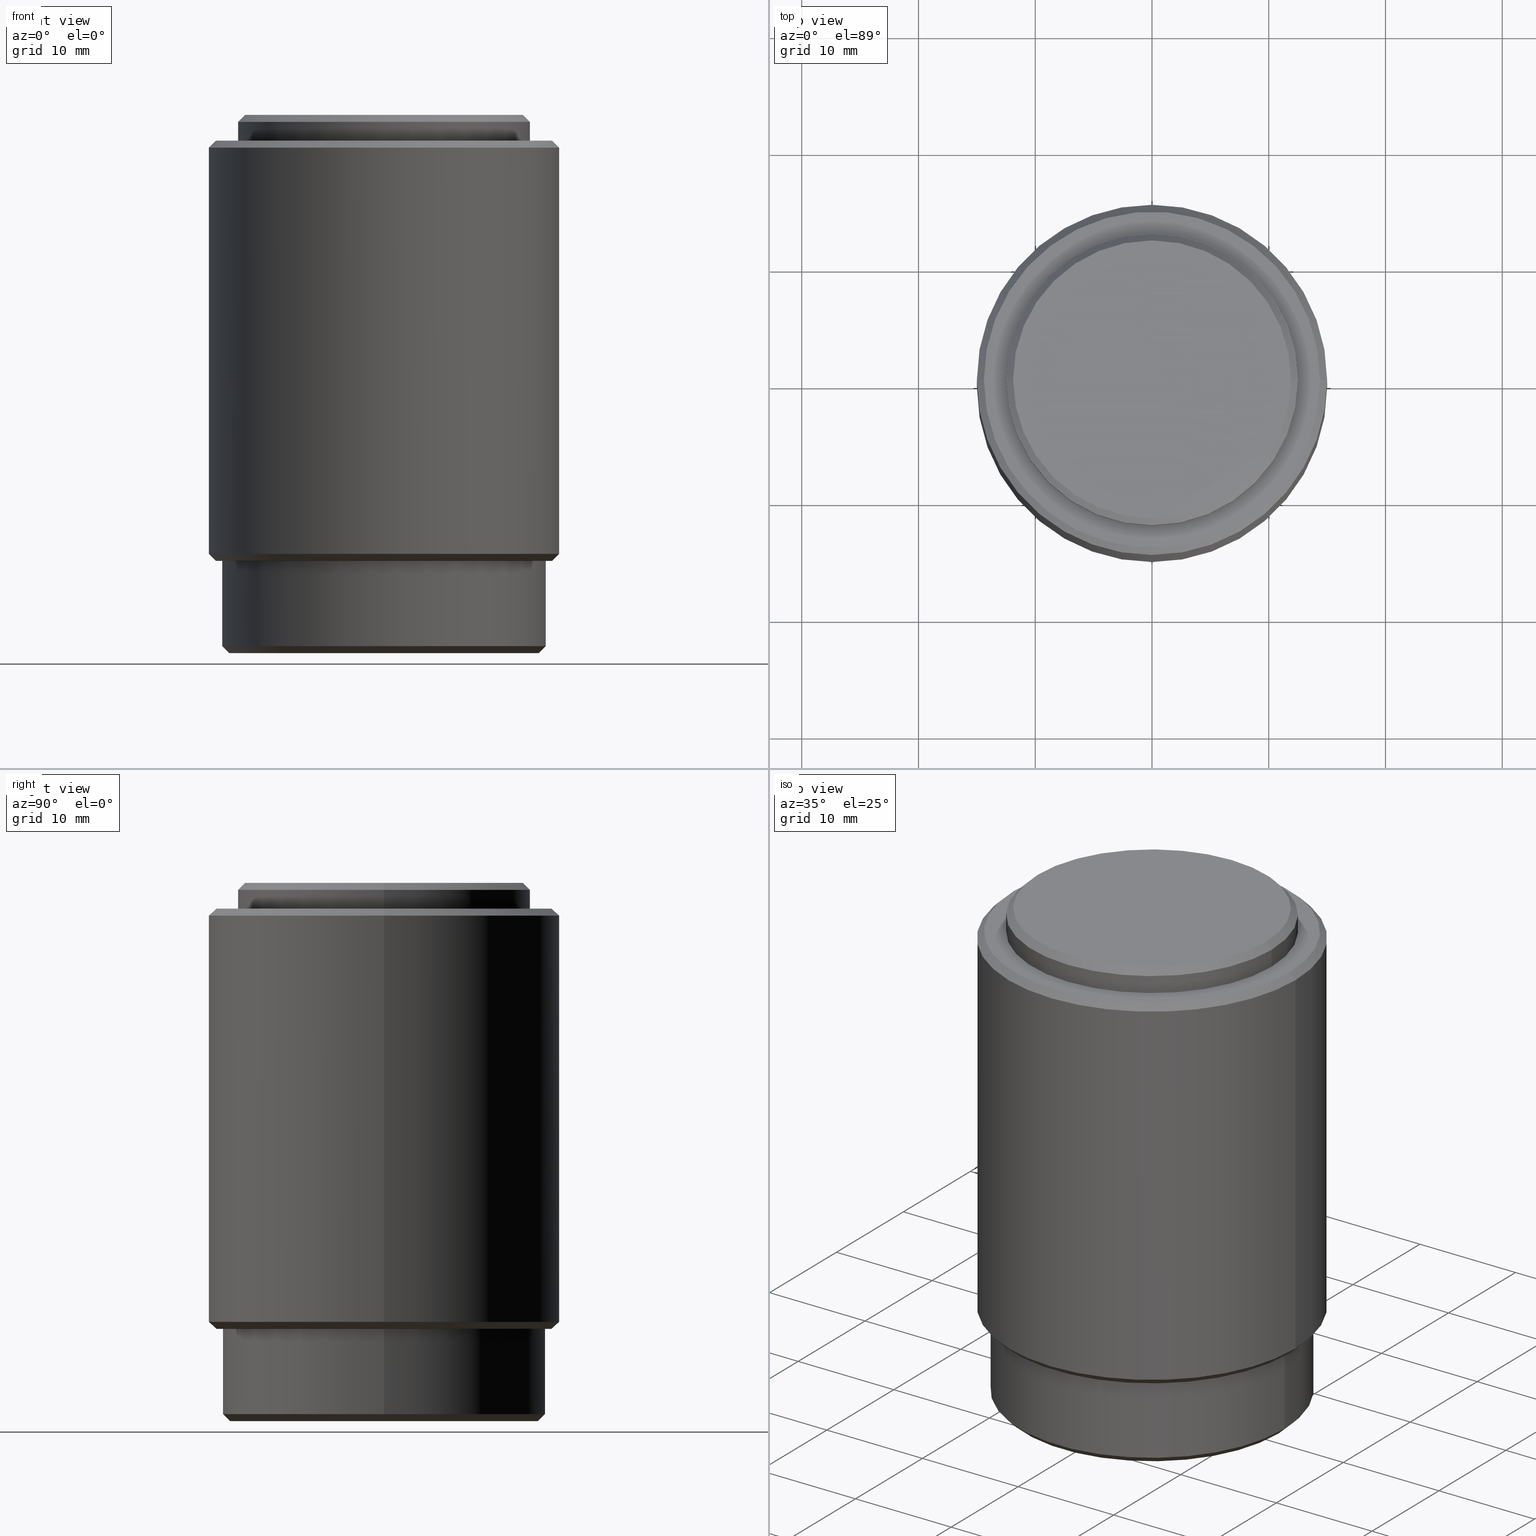
[diagram: canonical four-view strip — front | top / right | iso, engineering-drawing reading convention]
A machine part, canonical four-view strip (front | top / right | iso — engineering-drawing reading convention). The complete STEP part file that produces these views, byte-faithful:
ISO-10303-21;
HEADER;
FILE_DESCRIPTION (( 'STEP AP203' ),
    '1' );
FILE_NAME ('66130.STEP',
    '2019-03-04T07:16:58',
    ( 'User' ),
    ( 'china' ),
    'SwSTEP 2.0',
    'SolidWorks 2015',
    '' );
FILE_SCHEMA (( 'CONFIG_CONTROL_DESIGN' ));
ENDSEC;

DATA;
#1 = CC_DESIGN_DATE_AND_TIME_ASSIGNMENT ( #55, #217, ( #478 ) ) ;
#2 = VECTOR ( 'NONE', #477, 1000.000000000000000 ) ;
#3 = EDGE_CURVE ( 'NONE', #270, #249, #449, .T. ) ;
#4 = DIRECTION ( 'NONE',  ( -1.000000000000000000, 0.0000000000000000000, 0.0000000000000000000 ) ) ;
#5 = DIRECTION ( 'NONE',  ( 0.7071067811865495700, 0.0000000000000000000, 0.7071067811865454600 ) ) ;
#6 = APPROVAL_STATUS ( 'not_yet_approved' ) ;
#7 = APPROVAL_PERSON_ORGANIZATION ( #122, #228, #292 ) ;
#8 = CONICAL_SURFACE ( 'NONE', #385, 15.00000000000000000, 0.7853981633974511700 ) ;
#9 = VECTOR ( 'NONE', #491, 1000.000000000000000 ) ;
#10 = ADVANCED_FACE ( 'NONE', ( #173 ), #11, .T. ) ;
#11 = CYLINDRICAL_SURFACE ( 'NONE', #185, 12.50000000000000000 ) ;
#12 = ADVANCED_FACE ( 'NONE', ( #21 ), #322, .T. ) ;
#13 = EDGE_CURVE ( 'NONE', #110, #300, #229, .T. ) ;
#14 = AXIS2_PLACEMENT_3D ( 'NONE', #158, #402, #121 ) ;
#15 = CC_DESIGN_PERSON_AND_ORGANIZATION_ASSIGNMENT ( #223, #215, ( #251 ) ) ;
#16 = AXIS2_PLACEMENT_3D ( 'NONE', #81, #282, #36 ) ;
#17 = EDGE_CURVE ( 'NONE', #391, #103, #339, .T. ) ;
#18 = LINE ( 'NONE', #93, #224 ) ;
#19 = ORIENTED_EDGE ( 'NONE', *, *, #519, .T. ) ;
#20 = LINE ( 'NONE', #118, #446 ) ;
#21 = FACE_OUTER_BOUND ( 'NONE', #416, .T. ) ;
#22 = APPROVAL ( #505, 'δָ��' ) ;
#23 = ORIENTED_EDGE ( 'NONE', *, *, #88, .F. ) ;
#24 = DIRECTION ( 'NONE',  ( -1.000000000000000000, 0.0000000000000000000, 0.0000000000000000000 ) ) ;
#25 = EDGE_CURVE ( 'NONE', #463, #308, #434, .T. ) ;
#26 = ORIENTED_EDGE ( 'NONE', *, *, #503, .F. ) ;
#27 = ORIENTED_EDGE ( 'NONE', *, *, #354, .T. ) ;
#28 = CARTESIAN_POINT ( 'NONE',  ( -15.00000000000000000, 0.0000000000000000000, 43.89999999999999100 ) ) ;
#29 = CYLINDRICAL_SURFACE ( 'NONE', #301, 13.85000000000000000 ) ;
#30 = CARTESIAN_POINT ( 'NONE',  ( 0.0000000000000000000, 0.0000000000000000000, 8.500000000000007100 ) ) ;
#31 = CARTESIAN_POINT ( 'NONE',  ( -13.85000000000000000, 0.0000000000000000000, 0.6000000000000015300 ) ) ;
#32 = LINE ( 'NONE', #399, #462 ) ;
#33 = CARTESIAN_POINT ( 'NONE',  ( -13.85000000000000000, 0.0000000000000000000, 7.900000000000000400 ) ) ;
#34 = CARTESIAN_POINT ( 'NONE',  ( 0.0000000000000000000, 0.0000000000000000000, 45.49999999999997900 ) ) ;
#35 = ORIENTED_EDGE ( 'NONE', *, *, #418, .T. ) ;
#36 = DIRECTION ( 'NONE',  ( 1.000000000000000000, 0.0000000000000000000, 0.0000000000000000000 ) ) ;
#37 = DIRECTION ( 'NONE',  ( 1.000000000000000000, 0.0000000000000000000, 0.0000000000000000000 ) ) ;
#38 = CALENDAR_DATE ( 2019, 4, 3 ) ;
#39 = DIRECTION ( 'NONE',  ( 1.000000000000000000, 0.0000000000000000000, -0.0000000000000000000 ) ) ;
#40 = CARTESIAN_POINT ( 'NONE',  ( -14.39999999999999000, 1.800230794746608700E-015, 7.900000000000000400 ) ) ;
#41 = EDGE_CURVE ( 'NONE', #532, #300, #115, .T. ) ;
#42 = ORIENTED_EDGE ( 'NONE', *, *, #144, .T. ) ;
#43 = PLANE ( 'NONE',  #242 ) ;
#44 = AXIS2_PLACEMENT_3D ( 'NONE', #30, #357, #119 ) ;
#45 = DIRECTION ( 'NONE',  ( 0.0000000000000000000, 0.0000000000000000000, -1.000000000000000000 ) ) ;
#46 = CARTESIAN_POINT ( 'NONE',  ( -12.50000000000000000, 0.0000000000000000000, 43.89999999999999100 ) ) ;
#47 = PRODUCT_DEFINITION ( 'δ֪', '', #337, #355 ) ;
#48 =( NAMED_UNIT ( * ) SI_UNIT ( $, .STERADIAN. ) SOLID_ANGLE_UNIT ( ) );
#49 = CIRCLE ( 'NONE', #247, 15.00000000000000000 ) ;
#50 = AXIS2_PLACEMENT_3D ( 'NONE', #234, #483, #313 ) ;
#51 = EDGE_CURVE ( 'NONE', #295, #237, #427, .T. ) ;
#52 = PERSON_AND_ORGANIZATION_ROLE ( 'creator' ) ;
#53 = ORIENTED_EDGE ( 'NONE', *, *, #466, .F. ) ;
#54 = ADVANCED_FACE ( 'NONE', ( #310 ), #414, .T. ) ;
#55 = DATE_AND_TIME ( #164, #264 ) ;
#56 = ORIENTED_EDGE ( 'NONE', *, *, #494, .T. ) ;
#57 = CC_DESIGN_APPROVAL ( #22, ( #478 ) ) ;
#58 = ADVANCED_FACE ( 'NONE', ( #221 ), #196, .T. ) ;
#59 = EDGE_LOOP ( 'NONE', ( #235, #56, #367, #373 ) ) ;
#60 = VECTOR ( 'NONE', #529, 1000.000000000000000 ) ;
#61 = EDGE_CURVE ( 'NONE', #532, #249, #209, .T. ) ;
#62 = VERTEX_POINT ( 'NONE', #472 ) ;
#63 = VECTOR ( 'NONE', #163, 1000.000000000000000 ) ;
#64 = ORIENTED_EDGE ( 'NONE', *, *, #69, .F. ) ;
#65 = PERSON_AND_ORGANIZATION ( #371, #331 ) ;
#66 = ORIENTED_EDGE ( 'NONE', *, *, #77, .T. ) ;
#67 = EDGE_LOOP ( 'NONE', ( #394, #145 ) ) ;
#68 = FACE_OUTER_BOUND ( 'NONE', #186, .T. ) ;
#69 = EDGE_CURVE ( 'NONE', #80, #532, #32, .T. ) ;
#70 = DIRECTION ( 'NONE',  ( -0.0000000000000000000, -0.0000000000000000000, -1.000000000000000000 ) ) ;
#71 = AXIS2_PLACEMENT_3D ( 'NONE', #314, #535, #283 ) ;
#72 = DIRECTION ( 'NONE',  ( -0.7071067811865465700, 0.0000000000000000000, -0.7071067811865485700 ) ) ;
#73 = EDGE_LOOP ( 'NONE', ( #178, #193, #27, #255 ) ) ;
#74 = CIRCLE ( 'NONE', #44, 15.00000000000000000 ) ;
#75 = DIRECTION ( 'NONE',  ( 1.000000000000000000, 0.0000000000000000000, 0.0000000000000000000 ) ) ;
#76 = AXIS2_PLACEMENT_3D ( 'NONE', #324, #489, #89 ) ;
#77 = EDGE_CURVE ( 'NONE', #237, #295, #238, .T. ) ;
#78 = CARTESIAN_POINT ( 'NONE',  ( 13.24999999999999600, 0.0000000000000000000, 0.0000000000000000000 ) ) ;
#79 = LOCAL_TIME ( 15, 16, 58.00000000000000000, #190 ) ;
#80 = VERTEX_POINT ( 'NONE', #351 ) ;
#81 = CARTESIAN_POINT ( 'NONE',  ( 0.0000000000000000000, 0.0000000000000000000, 0.6000000000000015300 ) ) ;
#82 = ORIENTED_EDGE ( 'NONE', *, *, #25, .T. ) ;
#83 = CIRCLE ( 'NONE', #437, 14.39999999999999000 ) ;
#84 = DIRECTION ( 'NONE',  ( 1.000000000000000000, 0.0000000000000000000, 0.0000000000000000000 ) ) ;
#85 = CC_DESIGN_SECURITY_CLASSIFICATION ( #478, ( #337 ) ) ;
#86 = PLANE ( 'NONE',  #525 ) ;
#87 = CARTESIAN_POINT ( 'NONE',  ( 0.0000000000000000000, 0.0000000000000000000, 46.09999999999999400 ) ) ;
#88 = EDGE_CURVE ( 'NONE', #168, #103, #20, .T. ) ;
#89 = DIRECTION ( 'NONE',  ( 1.000000000000000000, 0.0000000000000000000, 0.0000000000000000000 ) ) ;
#90 = CARTESIAN_POINT ( 'NONE',  ( 14.40000000000000400, 1.763491390772189200E-015, 43.89999999999999100 ) ) ;
#91 = ORIENTED_EDGE ( 'NONE', *, *, #136, .F. ) ;
#92 = CARTESIAN_POINT ( 'NONE',  ( 0.0000000000000000000, 0.0000000000000000000, 43.89999999999999100 ) ) ;
#93 = CARTESIAN_POINT ( 'NONE',  ( 12.50000000000000000, 1.530808498934191500E-015, 46.09999999999999400 ) ) ;
#94 = APPLICATION_PROTOCOL_DEFINITION ( 'international standard', 'config_control_design', 1994, #133 ) ;
#95 = APPROVAL_STATUS ( 'not_yet_approved' ) ;
#96 = CALENDAR_DATE ( 2019, 4, 3 ) ;
#97 = EDGE_LOOP ( 'NONE', ( #398, #35, #406, #423 ) ) ;
#98 = VERTEX_POINT ( 'NONE', #412 ) ;
#99 = FACE_BOUND ( 'NONE', #259, .T. ) ;
#100 = ADVANCED_FACE ( 'NONE', ( #336 ), #86, .F. ) ;
#101 = VECTOR ( 'NONE', #430, 1000.000000000000000 ) ;
#102 = AXIS2_PLACEMENT_3D ( 'NONE', #522, #349, #195 ) ;
#103 = VERTEX_POINT ( 'NONE', #401 ) ;
#104 = AXIS2_PLACEMENT_3D ( 'NONE', #485, #240, #37 ) ;
#105 = AXIS2_PLACEMENT_3D ( 'NONE', #534, #358, #123 ) ;
#106 = EDGE_CURVE ( 'NONE', #463, #161, #140, .T. ) ;
#107 = DATE_AND_TIME ( #216, #315 ) ;
#108 = EDGE_LOOP ( 'NONE', ( #260, #141 ) ) ;
#109 = CARTESIAN_POINT ( 'NONE',  ( 0.0000000000000000000, 0.0000000000000000000, 7.900000000000000400 ) ) ;
#110 = VERTEX_POINT ( 'NONE', #241 ) ;
#111 = CYLINDRICAL_SURFACE ( 'NONE', #134, 15.00000000000000000 ) ;
#112 = DIRECTION ( 'NONE',  ( -1.000000000000000000, 0.0000000000000000000, 0.0000000000000000000 ) ) ;
#113 = CARTESIAN_POINT ( 'NONE',  ( 0.0000000000000000000, 0.0000000000000000000, 43.89999999999999100 ) ) ;
#114 = PRODUCT_RELATED_PRODUCT_CATEGORY ( 'detail', '', ( #251 ) ) ;
#115 = CIRCLE ( 'NONE', #154, 12.50000000000000000 ) ;
#116 = CARTESIAN_POINT ( 'NONE',  ( 0.0000000000000000000, 0.0000000000000000000, 46.09999999999999400 ) ) ;
#117 = EDGE_CURVE ( 'NONE', #62, #308, #226, .T. ) ;
#118 = CARTESIAN_POINT ( 'NONE',  ( 15.00000000000000000, 1.836970198721029600E-015, 43.89999999999999100 ) ) ;
#119 = DIRECTION ( 'NONE',  ( 1.000000000000000000, 0.0000000000000000000, 0.0000000000000000000 ) ) ;
#120 = DIRECTION ( 'NONE',  ( 0.0000000000000000000, 0.0000000000000000000, 1.000000000000000000 ) ) ;
#121 = DIRECTION ( 'NONE',  ( 1.000000000000000000, 0.0000000000000000000, 0.0000000000000000000 ) ) ;
#122 = PERSON_AND_ORGANIZATION ( #371, #331 ) ;
#123 = DIRECTION ( 'NONE',  ( 1.000000000000000000, 0.0000000000000000000, 0.0000000000000000000 ) ) ;
#124 = FACE_OUTER_BOUND ( 'NONE', #311, .T. ) ;
#125 = DIRECTION ( 'NONE',  ( 0.0000000000000000000, 0.0000000000000000000, -1.000000000000000000 ) ) ;
#126 = VECTOR ( 'NONE', #518, 1000.000000000000000 ) ;
#127 = DIRECTION ( 'NONE',  ( 1.000000000000000000, 0.0000000000000000000, 0.0000000000000000000 ) ) ;
#128 = AXIS2_PLACEMENT_3D ( 'NONE', #433, #149, #392 ) ;
#129 = CARTESIAN_POINT ( 'NONE',  ( 12.50000000000000000, 1.530808498934191500E-015, 43.89999999999999100 ) ) ;
#130 = DIRECTION ( 'NONE',  ( -0.0000000000000000000, -0.0000000000000000000, 1.000000000000000000 ) ) ;
#131 = DIRECTION ( 'NONE',  ( -0.0000000000000000000, -0.0000000000000000000, -1.000000000000000000 ) ) ;
#132 = CARTESIAN_POINT ( 'NONE',  ( 0.0000000000000000000, 0.0000000000000000000, 0.0000000000000000000 ) ) ;
#133 = APPLICATION_CONTEXT ( 'configuration controlled 3d designs of mechanical parts and assemblies' ) ;
#134 = AXIS2_PLACEMENT_3D ( 'NONE', #199, #363, #441 ) ;
#135 = ORIENTED_EDGE ( 'NONE', *, *, #302, .F. ) ;
#136 = EDGE_CURVE ( 'NONE', #249, #270, #344, .T. ) ;
#137 = VECTOR ( 'NONE', #5, 1000.000000000000000 ) ;
#138 = ORIENTED_EDGE ( 'NONE', *, *, #503, .T. ) ;
#139 = PERSON_AND_ORGANIZATION_ROLE ( 'creator' ) ;
#140 = CIRCLE ( 'NONE', #502, 13.24999999999999600 ) ;
#141 = ORIENTED_EDGE ( 'NONE', *, *, #435, .T. ) ;
#142 = ADVANCED_FACE ( 'NONE', ( #124 ), #111, .T. ) ;
#143 = ORIENTED_EDGE ( 'NONE', *, *, #106, .T. ) ;
#144 = EDGE_CURVE ( 'NONE', #335, #391, #219, .T. ) ;
#145 = ORIENTED_EDGE ( 'NONE', *, *, #157, .T. ) ;
#146 = CIRCLE ( 'NONE', #269, 11.89999999999998400 ) ;
#147 = DIRECTION ( 'NONE',  ( 0.0000000000000000000, 0.0000000000000000000, 1.000000000000000000 ) ) ;
#148 = ORIENTED_EDGE ( 'NONE', *, *, #3, .T. ) ;
#149 = DIRECTION ( 'NONE',  ( -0.0000000000000000000, -0.0000000000000000000, 1.000000000000000000 ) ) ;
#150 = LOCAL_TIME ( 15, 16, 58.00000000000000000, #256 ) ;
#151 = ORIENTED_EDGE ( 'NONE', *, *, #411, .T. ) ;
#152 = DIRECTION ( 'NONE',  ( -0.0000000000000000000, -0.0000000000000000000, -1.000000000000000000 ) ) ;
#153 = ORIENTED_EDGE ( 'NONE', *, *, #144, .F. ) ;
#154 = AXIS2_PLACEMENT_3D ( 'NONE', #263, #515, #227 ) ;
#155 = DIRECTION ( 'NONE',  ( -0.0000000000000000000, -0.0000000000000000000, -1.000000000000000000 ) ) ;
#156 = FACE_OUTER_BOUND ( 'NONE', #364, .T. ) ;
#157 = EDGE_CURVE ( 'NONE', #481, #165, #318, .T. ) ;
#158 = CARTESIAN_POINT ( 'NONE',  ( 0.0000000000000000000, 0.0000000000000000000, 7.900000000000000400 ) ) ;
#159 = MANIFOLD_SOLID_BREP ( '����1', #499 ) ;
#160 = DIRECTION ( 'NONE',  ( 0.0000000000000000000, 0.0000000000000000000, -1.000000000000000000 ) ) ;
#161 = VERTEX_POINT ( 'NONE', #78 ) ;
#162 = DIRECTION ( 'NONE',  ( 1.000000000000000000, 0.0000000000000000000, -0.0000000000000000000 ) ) ;
#163 = DIRECTION ( 'NONE',  ( -0.7071067811865495700, 8.659560562354957500E-017, 0.7071067811865454600 ) ) ;
#164 = CALENDAR_DATE ( 2019, 4, 3 ) ;
#165 = VERTEX_POINT ( 'NONE', #273 ) ;
#166 = DIRECTION ( 'NONE',  ( -0.0000000000000000000, -0.0000000000000000000, -1.000000000000000000 ) ) ;
#167 = DIRECTION ( 'NONE',  ( -0.0000000000000000000, -0.0000000000000000000, 1.000000000000000000 ) ) ;
#168 = VERTEX_POINT ( 'NONE', #286 ) ;
#169 = LINE ( 'NONE', #359, #268 ) ;
#170 = DIRECTION ( 'NONE',  ( 0.0000000000000000000, 0.0000000000000000000, 1.000000000000000000 ) ) ;
#171 = DIRECTION ( 'NONE',  ( 1.000000000000000000, 0.0000000000000000000, -0.0000000000000000000 ) ) ;
#172 = CARTESIAN_POINT ( 'NONE',  ( 0.0000000000000000000, 0.0000000000000000000, 7.900000000000000400 ) ) ;
#173 = FACE_OUTER_BOUND ( 'NONE', #262, .T. ) ;
#174 = DIRECTION ( 'NONE',  ( 0.7071067811865486800, 0.0000000000000000000, 0.7071067811865464600 ) ) ;
#175 = CONICAL_SURFACE ( 'NONE', #521, 14.40000000000000400, 0.7853981633974482800 ) ;
#176 = DIRECTION ( 'NONE',  ( 1.000000000000000000, 0.0000000000000000000, 0.0000000000000000000 ) ) ;
#177 = SECURITY_CLASSIFICATION_LEVEL ( 'unclassified' ) ;
#178 = ORIENTED_EDGE ( 'NONE', *, *, #330, .F. ) ;
#179 = PERSON_AND_ORGANIZATION ( #371, #331 ) ;
#180 = ORIENTED_EDGE ( 'NONE', *, *, #330, .T. ) ;
#181 = ADVANCED_FACE ( 'NONE', ( #309 ), #409, .T. ) ;
#182 = ORIENTED_EDGE ( 'NONE', *, *, #61, .T. ) ;
#183 = CIRCLE ( 'NONE', #496, 12.50000000000000000 ) ;
#184 = ADVANCED_FACE ( 'NONE', ( #432, #99 ), #43, .F. ) ;
#185 = AXIS2_PLACEMENT_3D ( 'NONE', #116, #70, #230 ) ;
#186 = EDGE_LOOP ( 'NONE', ( #191, #380, #289, #64 ) ) ;
#187 = CIRCLE ( 'NONE', #222, 13.85000000000000000 ) ;
#188 = AXIS2_PLACEMENT_3D ( 'NONE', #246, #212, #4 ) ;
#189 = CARTESIAN_POINT ( 'NONE',  ( -12.50000000000000000, 0.0000000000000000000, 46.09999999999999400 ) ) ;
#190 = COORDINATED_UNIVERSAL_TIME_OFFSET ( 8, 0, .AHEAD. ) ;
#191 = ORIENTED_EDGE ( 'NONE', *, *, #435, .F. ) ;
#192 = DIRECTION ( 'NONE',  ( -1.000000000000000000, 0.0000000000000000000, 0.0000000000000000000 ) ) ;
#193 = ORIENTED_EDGE ( 'NONE', *, *, #388, .F. ) ;
#194 = FACE_OUTER_BOUND ( 'NONE', #205, .T. ) ;
#195 = DIRECTION ( 'NONE',  ( 1.000000000000000000, 0.0000000000000000000, 0.0000000000000000000 ) ) ;
#196 = CYLINDRICAL_SURFACE ( 'NONE', #468, 13.85000000000000000 ) ;
#197 = ORIENTED_EDGE ( 'NONE', *, *, #106, .F. ) ;
#198 = AXIS2_PLACEMENT_3D ( 'NONE', #400, #320, #84 ) ;
#199 = CARTESIAN_POINT ( 'NONE',  ( 0.0000000000000000000, 0.0000000000000000000, 43.89999999999999100 ) ) ;
#200 = CARTESIAN_POINT ( 'NONE',  ( -13.24999999999999600, 1.659396412844663200E-015, 0.0000000000000000000 ) ) ;
#201 = CARTESIAN_POINT ( 'NONE',  ( -15.00000000000000000, 0.0000000000000000000, 43.29999999999999700 ) ) ;
#202 = LOCAL_TIME ( 15, 16, 58.00000000000000000, #303 ) ;
#203 = DIRECTION ( 'NONE',  ( -0.0000000000000000000, -0.0000000000000000000, -1.000000000000000000 ) ) ;
#204 = ORIENTED_EDGE ( 'NONE', *, *, #69, .T. ) ;
#205 = EDGE_LOOP ( 'NONE', ( #66, #492 ) ) ;
#206 = FACE_OUTER_BOUND ( 'NONE', #108, .T. ) ;
#207 = CARTESIAN_POINT ( 'NONE',  ( 0.0000000000000000000, 0.0000000000000000000, 0.0000000000000000000 ) ) ;
#208 = DIRECTION ( 'NONE',  ( -0.0000000000000000000, -0.0000000000000000000, -1.000000000000000000 ) ) ;
#209 = LINE ( 'NONE', #189, #101 ) ;
#210 = CARTESIAN_POINT ( 'NONE',  ( 0.0000000000000000000, 0.0000000000000000000, 46.09999999999999400 ) ) ;
#211 = DIRECTION ( 'NONE',  ( 0.0000000000000000000, 0.0000000000000000000, -1.000000000000000000 ) ) ;
#212 = DIRECTION ( 'NONE',  ( 0.0000000000000000000, 0.0000000000000000000, -1.000000000000000000 ) ) ;
#213 = CARTESIAN_POINT ( 'NONE',  ( 0.0000000000000000000, 0.0000000000000000000, 0.0000000000000000000 ) ) ;
#214 = CARTESIAN_POINT ( 'NONE',  ( -12.50000000000000000, 0.0000000000000000000, 45.49999999999997900 ) ) ;
#215 = PERSON_AND_ORGANIZATION_ROLE ( 'design_owner' ) ;
#216 = CALENDAR_DATE ( 2019, 4, 3 ) ;
#217 = DATE_TIME_ROLE ( 'classification_date' ) ;
#218 = ORIENTED_EDGE ( 'NONE', *, *, #61, .F. ) ;
#219 = LINE ( 'NONE', #28, #9 ) ;
#220 = ADVANCED_FACE ( 'NONE', ( #533 ), #511, .T. ) ;
#221 = FACE_OUTER_BOUND ( 'NONE', #73, .T. ) ;
#222 = AXIS2_PLACEMENT_3D ( 'NONE', #410, #167, #451 ) ;
#223 = PERSON_AND_ORGANIZATION ( #371, #331 ) ;
#224 = VECTOR ( 'NONE', #372, 1000.000000000000000 ) ;
#225 = ORIENTED_EDGE ( 'NONE', *, *, #347, .T. ) ;
#226 = CIRCLE ( 'NONE', #16, 13.85000000000000000 ) ;
#227 = DIRECTION ( 'NONE',  ( 1.000000000000000000, 0.0000000000000000000, 0.0000000000000000000 ) ) ;
#228 = APPROVAL ( #6, 'δָ��' ) ;
#229 = LINE ( 'NONE', #266, #126 ) ;
#230 = DIRECTION ( 'NONE',  ( -1.000000000000000000, 0.0000000000000000000, 0.0000000000000000000 ) ) ;
#231 = ORIENTED_EDGE ( 'NONE', *, *, #418, .F. ) ;
#232 = ORIENTED_EDGE ( 'NONE', *, *, #480, .T. ) ;
#233 = DIRECTION ( 'NONE',  ( 1.000000000000000000, 0.0000000000000000000, 0.0000000000000000000 ) ) ;
#234 = CARTESIAN_POINT ( 'NONE',  ( 0.0000000000000000000, 0.0000000000000000000, 43.89999999999999100 ) ) ;
#235 = ORIENTED_EDGE ( 'NONE', *, *, #51, .F. ) ;
#236 = VECTOR ( 'NONE', #245, 1000.000000000000100 ) ;
#237 = VERTEX_POINT ( 'NONE', #455 ) ;
#238 = CIRCLE ( 'NONE', #387, 14.40000000000000400 ) ;
#239 = EDGE_LOOP ( 'NONE', ( #138, #143 ) ) ;
#240 = DIRECTION ( 'NONE',  ( -0.0000000000000000000, -0.0000000000000000000, 1.000000000000000000 ) ) ;
#241 = CARTESIAN_POINT ( 'NONE',  ( 11.89999999999998400, 1.494069094959770100E-015, 46.09999999999999400 ) ) ;
#242 = AXIS2_PLACEMENT_3D ( 'NONE', #326, #120, #171 ) ;
#243 = DIRECTION ( 'NONE',  ( -1.000000000000000000, 0.0000000000000000000, 0.0000000000000000000 ) ) ;
#244 = EDGE_LOOP ( 'NONE', ( #384, #53, #204, #378 ) ) ;
#245 = DIRECTION ( 'NONE',  ( 0.7071067811865474600, 8.659560562354932900E-017, -0.7071067811865474600 ) ) ;
#246 = CARTESIAN_POINT ( 'NONE',  ( 0.0000000000000000000, 0.0000000000000000000, 43.89999999999999100 ) ) ;
#247 = AXIS2_PLACEMENT_3D ( 'NONE', #453, #211, #497 ) ;
#248 = DIRECTION ( 'NONE',  ( 1.000000000000000000, 0.0000000000000000000, 0.0000000000000000000 ) ) ;
#249 = VERTEX_POINT ( 'NONE', #46 ) ;
#250 = CONICAL_SURFACE ( 'NONE', #104, 13.85000000000000000, 0.7853981633974498300 ) ;
#251 = PRODUCT ( '66130', '66130', '', ( #459 ) ) ;
#252 = APPLICATION_PROTOCOL_DEFINITION ( 'international standard', 'config_control_design', 1994, #504 ) ;
#253 = APPROVAL_ROLE ( '' ) ;
#254 = CC_DESIGN_APPROVAL ( #228, ( #47 ) ) ;
#255 = ORIENTED_EDGE ( 'NONE', *, *, #440, .T. ) ;
#256 = COORDINATED_UNIVERSAL_TIME_OFFSET ( 8, 0, .AHEAD. ) ;
#257 = ORIENTED_EDGE ( 'NONE', *, *, #25, .F. ) ;
#258 = ADVANCED_FACE ( 'NONE', ( #194, #296 ), #369, .T. ) ;
#259 = EDGE_LOOP ( 'NONE', ( #360, #304 ) ) ;
#260 = ORIENTED_EDGE ( 'NONE', *, *, #466, .T. ) ;
#261 = FACE_OUTER_BOUND ( 'NONE', #284, .T. ) ;
#262 = EDGE_LOOP ( 'NONE', ( #479, #513, #182, #429 ) ) ;
#263 = CARTESIAN_POINT ( 'NONE',  ( 0.0000000000000000000, 0.0000000000000000000, 45.49999999999997900 ) ) ;
#264 = LOCAL_TIME ( 15, 16, 58.00000000000000000, #377 ) ;
#265 = ORIENTED_EDGE ( 'NONE', *, *, #470, .T. ) ;
#266 = CARTESIAN_POINT ( 'NONE',  ( 11.89999999999998400, 1.457329690985348400E-015, 46.09999999999999400 ) ) ;
#267 = ORIENTED_EDGE ( 'NONE', *, *, #117, .T. ) ;
#268 = VECTOR ( 'NONE', #276, 1000.000000000000100 ) ;
#269 = AXIS2_PLACEMENT_3D ( 'NONE', #87, #368, #127 ) ;
#270 = VERTEX_POINT ( 'NONE', #129 ) ;
#271 = CARTESIAN_POINT ( 'NONE',  ( 0.0000000000000000000, 0.0000000000000000000, 43.89999999999999100 ) ) ;
#272 = CIRCLE ( 'NONE', #14, 13.85000000000000000 ) ;
#273 = CARTESIAN_POINT ( 'NONE',  ( 14.39999999999999000, 0.0000000000000000000, 7.900000000000000400 ) ) ;
#274 = CARTESIAN_POINT ( 'NONE',  ( -15.00000000000000000, 0.0000000000000000000, 8.500000000000007100 ) ) ;
#275 = CARTESIAN_POINT ( 'NONE',  ( 0.0000000000000000000, 0.0000000000000000000, 46.09999999999999400 ) ) ;
#276 = DIRECTION ( 'NONE',  ( -0.7071067811865474600, 0.0000000000000000000, -0.7071067811865474600 ) ) ;
#277 = ORIENTED_EDGE ( 'NONE', *, *, #3, .F. ) ;
#278 = DIRECTION ( 'NONE',  ( 0.0000000000000000000, 0.0000000000000000000, -1.000000000000000000 ) ) ;
#279 = APPROVAL_DATE_TIME ( #390, #361 ) ;
#280 = EDGE_LOOP ( 'NONE', ( #257, #26, #376, #507 ) ) ;
#281 = CC_DESIGN_PERSON_AND_ORGANIZATION_ASSIGNMENT ( #421, #52, ( #47 ) ) ;
#282 = DIRECTION ( 'NONE',  ( -0.0000000000000000000, -0.0000000000000000000, 1.000000000000000000 ) ) ;
#283 = DIRECTION ( 'NONE',  ( 1.000000000000000000, 0.0000000000000000000, 0.0000000000000000000 ) ) ;
#284 = EDGE_LOOP ( 'NONE', ( #135, #180, #267, #469 ) ) ;
#285 = LINE ( 'NONE', #312, #424 ) ;
#286 = CARTESIAN_POINT ( 'NONE',  ( 15.00000000000000000, 1.836970198721029600E-015, 43.29999999999999700 ) ) ;
#287 = CARTESIAN_POINT ( 'NONE',  ( 0.0000000000000000000, 0.0000000000000000000, 43.29999999999999700 ) ) ;
#288 = PLANE ( 'NONE',  #383 ) ;
#289 = ORIENTED_EDGE ( 'NONE', *, *, #41, .F. ) ;
#290 = CARTESIAN_POINT ( 'NONE',  ( 15.00000000000000000, 0.0000000000000000000, 8.500000000000007100 ) ) ;
#291 =( NAMED_UNIT ( * ) PLANE_ANGLE_UNIT ( ) SI_UNIT ( $, .RADIAN. ) );
#292 = APPROVAL_ROLE ( '' ) ;
#293 = APPROVAL_PERSON_ORGANIZATION ( #405, #361, #375 ) ;
#294 = ORIENTED_EDGE ( 'NONE', *, *, #17, .F. ) ;
#295 = VERTEX_POINT ( 'NONE', #527 ) ;
#296 = FACE_BOUND ( 'NONE', #510, .T. ) ;
#297 = ADVANCED_FACE ( 'NONE', ( #206 ), #288, .T. ) ;
#298 = FACE_OUTER_BOUND ( 'NONE', #341, .T. ) ;
#299 = ADVANCED_FACE ( 'NONE', ( #517 ), #493, .T. ) ;
#300 = VERTEX_POINT ( 'NONE', #443 ) ;
#301 = AXIS2_PLACEMENT_3D ( 'NONE', #442, #208, #365 ) ;
#302 = EDGE_CURVE ( 'NONE', #345, #98, #395, .T. ) ;
#303 = COORDINATED_UNIVERSAL_TIME_OFFSET ( 8, 0, .AHEAD. ) ;
#304 = ORIENTED_EDGE ( 'NONE', *, *, #302, .T. ) ;
#305 = DIRECTION ( 'NONE',  ( -0.0000000000000000000, -0.0000000000000000000, -1.000000000000000000 ) ) ;
#306 = DIRECTION ( 'NONE',  ( -0.0000000000000000000, -0.0000000000000000000, -1.000000000000000000 ) ) ;
#307 = CC_DESIGN_DATE_AND_TIME_ASSIGNMENT ( #514, #332, ( #47 ) ) ;
#308 = VERTEX_POINT ( 'NONE', #31 ) ;
#309 = FACE_OUTER_BOUND ( 'NONE', #97, .T. ) ;
#310 = FACE_OUTER_BOUND ( 'NONE', #476, .T. ) ;
#311 = EDGE_LOOP ( 'NONE', ( #23, #265, #42, #342 ) ) ;
#312 = CARTESIAN_POINT ( 'NONE',  ( 13.85000000000000000, 1.696135816819084000E-015, 7.900000000000000400 ) ) ;
#313 = DIRECTION ( 'NONE',  ( 1.000000000000000000, 0.0000000000000000000, 0.0000000000000000000 ) ) ;
#314 = CARTESIAN_POINT ( 'NONE',  ( 0.0000000000000000000, 0.0000000000000000000, 0.6000000000000015300 ) ) ;
#315 = LOCAL_TIME ( 15, 16, 58.00000000000000000, #428 ) ;
#316 = VECTOR ( 'NONE', #174, 1000.000000000000000 ) ;
#317 = CARTESIAN_POINT ( 'NONE',  ( 13.85000000000000000, 1.696135816819084000E-015, 7.900000000000000400 ) ) ;
#318 = CIRCLE ( 'NONE', #105, 14.39999999999999000 ) ;
#319 = CARTESIAN_POINT ( 'NONE',  ( 0.0000000000000000000, 0.0000000000000000000, 43.89999999999999100 ) ) ;
#320 = DIRECTION ( 'NONE',  ( 0.0000000000000000000, 0.0000000000000000000, 1.000000000000000000 ) ) ;
#321 = EDGE_CURVE ( 'NONE', #165, #481, #83, .T. ) ;
#322 = CYLINDRICAL_SURFACE ( 'NONE', #329, 15.00000000000000000 ) ;
#323 = AXIS2_PLACEMENT_3D ( 'NONE', #92, #415, #403 ) ;
#324 = CARTESIAN_POINT ( 'NONE',  ( 0.0000000000000000000, 0.0000000000000000000, 8.500000000000007100 ) ) ;
#325 = DIRECTION ( 'NONE',  ( 1.000000000000000000, 0.0000000000000000000, 0.0000000000000000000 ) ) ;
#326 = CARTESIAN_POINT ( 'NONE',  ( 0.0000000000000000000, 0.0000000000000000000, 7.900000000000000400 ) ) ;
#327 = AXIS2_PLACEMENT_3D ( 'NONE', #287, #45, #325 ) ;
#328 = CARTESIAN_POINT ( 'NONE',  ( 13.85000000000000000, 0.0000000000000000000, 0.6000000000000015300 ) ) ;
#329 = AXIS2_PLACEMENT_3D ( 'NONE', #113, #152, #24 ) ;
#330 = EDGE_CURVE ( 'NONE', #345, #62, #285, .T. ) ;
#331 = ORGANIZATION ( 'δָ��', 'δָ��', '' ) ;
#332 = DATE_TIME_ROLE ( 'creation_date' ) ;
#333 = PRODUCT_DEFINITION_SHAPE ( 'NONE', 'NONE',  #47 ) ;
#334 = LINE ( 'NONE', #328, #316 ) ;
#335 = VERTEX_POINT ( 'NONE', #201 ) ;
#336 = FACE_OUTER_BOUND ( 'NONE', #239, .T. ) ;
#337 = PRODUCT_DEFINITION_FORMATION_WITH_SPECIFIED_SOURCE ( '�κ�', '', #251, .NOT_KNOWN. ) ;
#338 = ADVANCED_FACE ( 'NONE', ( #68 ), #520, .T. ) ;
#339 = CIRCLE ( 'NONE', #128, 15.00000000000000000 ) ;
#340 = ORIENTED_EDGE ( 'NONE', *, *, #88, .T. ) ;
#341 = EDGE_LOOP ( 'NONE', ( #454, #458, #225, #490 ) ) ;
#342 = ORIENTED_EDGE ( 'NONE', *, *, #17, .T. ) ;
#343 = CIRCLE ( 'NONE', #352, 13.24999999999999600 ) ;
#344 = CIRCLE ( 'NONE', #50, 12.50000000000000000 ) ;
#345 = VERTEX_POINT ( 'NONE', #317 ) ;
#346 = APPROVAL_DATE_TIME ( #464, #22 ) ;
#347 = EDGE_CURVE ( 'NONE', #237, #335, #169, .T. ) ;
#348 = AXIS2_PLACEMENT_3D ( 'NONE', #275, #495, #243 ) ;
#349 = DIRECTION ( 'NONE',  ( 0.0000000000000000000, 0.0000000000000000000, 1.000000000000000000 ) ) ;
#350 = ORIENTED_EDGE ( 'NONE', *, *, #321, .F. ) ;
#351 = CARTESIAN_POINT ( 'NONE',  ( -11.89999999999998400, 0.0000000000000000000, 46.09999999999999400 ) ) ;
#352 = AXIS2_PLACEMENT_3D ( 'NONE', #213, #498, #248 ) ;
#353 = AXIS2_PLACEMENT_3D ( 'NONE', #431, #147, #389 ) ;
#354 = EDGE_CURVE ( 'NONE', #98, #308, #381, .T. ) ;
#355 = DESIGN_CONTEXT ( 'detailed design', #504, 'design' ) ;
#356 = CIRCLE ( 'NONE', #198, 11.89999999999998400 ) ;
#357 = DIRECTION ( 'NONE',  ( -0.0000000000000000000, -0.0000000000000000000, 1.000000000000000000 ) ) ;
#358 = DIRECTION ( 'NONE',  ( -0.0000000000000000000, -0.0000000000000000000, -1.000000000000000000 ) ) ;
#359 = CARTESIAN_POINT ( 'NONE',  ( -14.40000000000000400, 0.0000000000000000000, 43.89999999999999100 ) ) ;
#360 = ORIENTED_EDGE ( 'NONE', *, *, #388, .T. ) ;
#361 = APPROVAL ( #95, 'δָ��' ) ;
#362 = APPROVAL_PERSON_ORGANIZATION ( #475, #22, #253 ) ;
#363 = DIRECTION ( 'NONE',  ( -0.0000000000000000000, -0.0000000000000000000, -1.000000000000000000 ) ) ;
#364 = EDGE_LOOP ( 'NONE', ( #231, #350, #19, #294 ) ) ;
#365 = DIRECTION ( 'NONE',  ( -1.000000000000000000, 0.0000000000000000000, 0.0000000000000000000 ) ) ;
#366 = DIRECTION ( 'NONE',  ( 0.0000000000000000000, 0.0000000000000000000, 1.000000000000000000 ) ) ;
#367 = ORIENTED_EDGE ( 'NONE', *, *, #480, .F. ) ;
#368 = DIRECTION ( 'NONE',  ( 0.0000000000000000000, 0.0000000000000000000, 1.000000000000000000 ) ) ;
#369 = PLANE ( 'NONE',  #323 ) ;
#370 = DIRECTION ( 'NONE',  ( 1.000000000000000000, 0.0000000000000000000, 0.0000000000000000000 ) ) ;
#371 = PERSON ( 'δָ��', 'δָ��', 'δָ��', ('δָ��'), ('δָ��'), ('δָ��') ) ;
#372 = DIRECTION ( 'NONE',  ( -0.0000000000000000000, -0.0000000000000000000, -1.000000000000000000 ) ) ;
#373 = ORIENTED_EDGE ( 'NONE', *, *, #347, .F. ) ;
#374 = FACE_OUTER_BOUND ( 'NONE', #474, .T. ) ;
#375 = APPROVAL_ROLE ( '' ) ;
#376 = ORIENTED_EDGE ( 'NONE', *, *, #526, .T. ) ;
#377 = COORDINATED_UNIVERSAL_TIME_OFFSET ( 8, 0, .AHEAD. ) ;
#378 = ORIENTED_EDGE ( 'NONE', *, *, #379, .F. ) ;
#379 = EDGE_CURVE ( 'NONE', #300, #532, #183, .T. ) ;
#380 = ORIENTED_EDGE ( 'NONE', *, *, #13, .T. ) ;
#381 = LINE ( 'NONE', #33, #60 ) ;
#382 = ADVANCED_FACE ( 'NONE', ( #298 ), #175, .T. ) ;
#383 = AXIS2_PLACEMENT_3D ( 'NONE', #210, #170, #162 ) ;
#384 = ORIENTED_EDGE ( 'NONE', *, *, #13, .F. ) ;
#385 = AXIS2_PLACEMENT_3D ( 'NONE', #456, #130, #370 ) ;
#386 = FACE_OUTER_BOUND ( 'NONE', #280, .T. ) ;
#387 = AXIS2_PLACEMENT_3D ( 'NONE', #271, #523, #233 ) ;
#388 = EDGE_CURVE ( 'NONE', #98, #345, #272, .T. ) ;
#389 = DIRECTION ( 'NONE',  ( 1.000000000000000000, 0.0000000000000000000, 0.0000000000000000000 ) ) ;
#390 = DATE_AND_TIME ( #506, #79 ) ;
#391 = VERTEX_POINT ( 'NONE', #274 ) ;
#392 = DIRECTION ( 'NONE',  ( 1.000000000000000000, 0.0000000000000000000, 0.0000000000000000000 ) ) ;
#393 = CC_DESIGN_APPROVAL ( #361, ( #337 ) ) ;
#394 = ORIENTED_EDGE ( 'NONE', *, *, #321, .T. ) ;
#395 = CIRCLE ( 'NONE', #413, 13.85000000000000000 ) ;
#396 = CARTESIAN_POINT ( 'NONE',  ( -13.85000000000000000, 1.696135816819083800E-015, 0.6000000000000015300 ) ) ;
#397 = UNCERTAINTY_MEASURE_WITH_UNIT (LENGTH_MEASURE( 1.000000000000000100E-005 ), #501, 'distance_accuracy_value', 'NONE');
#398 = ORIENTED_EDGE ( 'NONE', *, *, #157, .F. ) ;
#399 = CARTESIAN_POINT ( 'NONE',  ( -11.89999999999998400, 0.0000000000000000000, 46.09999999999999400 ) ) ;
#400 = CARTESIAN_POINT ( 'NONE',  ( 0.0000000000000000000, 0.0000000000000000000, 46.09999999999999400 ) ) ;
#401 = CARTESIAN_POINT ( 'NONE',  ( 15.00000000000000000, 1.836970198721029600E-015, 8.500000000000007100 ) ) ;
#402 = DIRECTION ( 'NONE',  ( 0.0000000000000000000, 0.0000000000000000000, 1.000000000000000000 ) ) ;
#403 = DIRECTION ( 'NONE',  ( 1.000000000000000000, 0.0000000000000000000, -0.0000000000000000000 ) ) ;
#404 = DIRECTION ( 'NONE',  ( -1.000000000000000000, 0.0000000000000000000, 0.0000000000000000000 ) ) ;
#405 = PERSON_AND_ORGANIZATION ( #371, #331 ) ;
#406 = ORIENTED_EDGE ( 'NONE', *, *, #411, .F. ) ;
#407 = DIRECTION ( 'NONE',  ( -1.000000000000000000, 0.0000000000000000000, 0.0000000000000000000 ) ) ;
#408 = ORIENTED_EDGE ( 'NONE', *, *, #526, .F. ) ;
#409 = CONICAL_SURFACE ( 'NONE', #76, 15.00000000000000000, 0.7853981633974511700 ) ;
#410 = CARTESIAN_POINT ( 'NONE',  ( 0.0000000000000000000, 0.0000000000000000000, 0.6000000000000015300 ) ) ;
#411 = EDGE_CURVE ( 'NONE', #103, #391, #74, .T. ) ;
#412 = CARTESIAN_POINT ( 'NONE',  ( -13.85000000000000000, 0.0000000000000000000, 7.900000000000000400 ) ) ;
#413 = AXIS2_PLACEMENT_3D ( 'NONE', #172, #457, #75 ) ;
#414 = CYLINDRICAL_SURFACE ( 'NONE', #439, 12.50000000000000000 ) ;
#415 = DIRECTION ( 'NONE',  ( 0.0000000000000000000, 0.0000000000000000000, 1.000000000000000000 ) ) ;
#416 = EDGE_LOOP ( 'NONE', ( #232, #340, #151, #153 ) ) ;
#417 =( GEOMETRIC_REPRESENTATION_CONTEXT ( 3 ) GLOBAL_UNCERTAINTY_ASSIGNED_CONTEXT ( ( #397 ) ) GLOBAL_UNIT_ASSIGNED_CONTEXT ( ( #501, #291, #48 ) ) REPRESENTATION_CONTEXT ( 'NONE', 'WORKASPACE' ) );
#418 = EDGE_CURVE ( 'NONE', #481, #391, #500, .T. ) ;
#419 = DIRECTION ( 'NONE',  ( 0.0000000000000000000, 0.0000000000000000000, 1.000000000000000000 ) ) ;
#420 = PERSON_AND_ORGANIZATION_ROLE ( 'design_supplier' ) ;
#421 = PERSON_AND_ORGANIZATION ( #371, #331 ) ;
#422 = ADVANCED_FACE ( 'NONE', ( #386 ), #471, .T. ) ;
#423 = ORIENTED_EDGE ( 'NONE', *, *, #519, .F. ) ;
#424 = VECTOR ( 'NONE', #131, 1000.000000000000000 ) ;
#425 = CC_DESIGN_PERSON_AND_ORGANIZATION_ASSIGNMENT ( #179, #139, ( #337 ) ) ;
#426 = ADVANCED_FACE ( 'NONE', ( #374 ), #250, .T. ) ;
#427 = CIRCLE ( 'NONE', #353, 14.40000000000000400 ) ;
#428 = COORDINATED_UNIVERSAL_TIME_OFFSET ( 8, 0, .AHEAD. ) ;
#429 = ORIENTED_EDGE ( 'NONE', *, *, #136, .T. ) ;
#430 = DIRECTION ( 'NONE',  ( -0.0000000000000000000, -0.0000000000000000000, -1.000000000000000000 ) ) ;
#431 = CARTESIAN_POINT ( 'NONE',  ( 0.0000000000000000000, 0.0000000000000000000, 43.89999999999999100 ) ) ;
#432 = FACE_OUTER_BOUND ( 'NONE', #67, .T. ) ;
#433 = CARTESIAN_POINT ( 'NONE',  ( 0.0000000000000000000, 0.0000000000000000000, 8.500000000000007100 ) ) ;
#434 = LINE ( 'NONE', #396, #2 ) ;
#435 = EDGE_CURVE ( 'NONE', #110, #80, #356, .T. ) ;
#436 = SHAPE_DEFINITION_REPRESENTATION ( #333, #486 ) ;
#437 = AXIS2_PLACEMENT_3D ( 'NONE', #438, #155, #484 ) ;
#438 = CARTESIAN_POINT ( 'NONE',  ( 0.0000000000000000000, 0.0000000000000000000, 7.900000000000000400 ) ) ;
#439 = AXIS2_PLACEMENT_3D ( 'NONE', #473, #306, #192 ) ;
#440 = EDGE_CURVE ( 'NONE', #308, #62, #187, .T. ) ;
#441 = DIRECTION ( 'NONE',  ( -1.000000000000000000, 0.0000000000000000000, 0.0000000000000000000 ) ) ;
#442 = CARTESIAN_POINT ( 'NONE',  ( 0.0000000000000000000, 0.0000000000000000000, 7.900000000000000400 ) ) ;
#443 = CARTESIAN_POINT ( 'NONE',  ( 12.50000000000000000, 1.530808498934191500E-015, 45.49999999999997900 ) ) ;
#444 = LINE ( 'NONE', #290, #137 ) ;
#445 = CARTESIAN_POINT ( 'NONE',  ( -15.00000000000000000, 1.836970198721029600E-015, 8.500000000000007100 ) ) ;
#446 = VECTOR ( 'NONE', #203, 1000.000000000000000 ) ;
#447 = CARTESIAN_POINT ( 'NONE',  ( 0.0000000000000000000, 0.0000000000000000000, 46.09999999999999400 ) ) ;
#448 = CC_DESIGN_PERSON_AND_ORGANIZATION_ASSIGNMENT ( #65, #420, ( #337 ) ) ;
#449 = CIRCLE ( 'NONE', #102, 12.50000000000000000 ) ;
#450 = DIRECTION ( 'NONE',  ( 1.000000000000000000, 0.0000000000000000000, 0.0000000000000000000 ) ) ;
#451 = DIRECTION ( 'NONE',  ( 1.000000000000000000, 0.0000000000000000000, 0.0000000000000000000 ) ) ;
#452 = ORIENTED_EDGE ( 'NONE', *, *, #512, .T. ) ;
#453 = CARTESIAN_POINT ( 'NONE',  ( 0.0000000000000000000, 0.0000000000000000000, 43.29999999999999700 ) ) ;
#454 = ORIENTED_EDGE ( 'NONE', *, *, #494, .F. ) ;
#455 = CARTESIAN_POINT ( 'NONE',  ( -14.40000000000000400, 0.0000000000000000000, 43.89999999999999100 ) ) ;
#456 = CARTESIAN_POINT ( 'NONE',  ( 0.0000000000000000000, 0.0000000000000000000, 8.500000000000007100 ) ) ;
#457 = DIRECTION ( 'NONE',  ( 0.0000000000000000000, 0.0000000000000000000, 1.000000000000000000 ) ) ;
#458 = ORIENTED_EDGE ( 'NONE', *, *, #77, .F. ) ;
#459 = MECHANICAL_CONTEXT ( 'NONE', #133, 'mechanical' ) ;
#460 = LINE ( 'NONE', #90, #236 ) ;
#461 = PERSON_AND_ORGANIZATION_ROLE ( 'classification_officer' ) ;
#462 = VECTOR ( 'NONE', #72, 1000.000000000000000 ) ;
#463 = VERTEX_POINT ( 'NONE', #200 ) ;
#464 = DATE_AND_TIME ( #38, #150 ) ;
#465 = ADVANCED_FACE ( 'NONE', ( #261 ), #29, .T. ) ;
#466 = EDGE_CURVE ( 'NONE', #80, #110, #146, .T. ) ;
#467 = AXIS2_PLACEMENT_3D ( 'NONE', #447, #160, #404 ) ;
#468 = AXIS2_PLACEMENT_3D ( 'NONE', #109, #305, #112 ) ;
#469 = ORIENTED_EDGE ( 'NONE', *, *, #354, .F. ) ;
#470 = EDGE_CURVE ( 'NONE', #168, #335, #49, .T. ) ;
#471 = CONICAL_SURFACE ( 'NONE', #71, 13.85000000000000000, 0.7853981633974498300 ) ;
#472 = CARTESIAN_POINT ( 'NONE',  ( 13.85000000000000000, 1.696135816819084000E-015, 0.6000000000000015300 ) ) ;
#473 = CARTESIAN_POINT ( 'NONE',  ( 0.0000000000000000000, 0.0000000000000000000, 46.09999999999999400 ) ) ;
#474 = EDGE_LOOP ( 'NONE', ( #197, #82, #487, #408 ) ) ;
#475 = PERSON_AND_ORGANIZATION ( #371, #331 ) ;
#476 = EDGE_LOOP ( 'NONE', ( #516, #452, #148, #218 ) ) ;
#477 = DIRECTION ( 'NONE',  ( -0.7071067811865486800, 8.659560562354946400E-017, 0.7071067811865464600 ) ) ;
#478 = SECURITY_CLASSIFICATION ( '', '', #177 ) ;
#479 = ORIENTED_EDGE ( 'NONE', *, *, #512, .F. ) ;
#480 = EDGE_CURVE ( 'NONE', #335, #168, #482, .T. ) ;
#481 = VERTEX_POINT ( 'NONE', #40 ) ;
#482 = CIRCLE ( 'NONE', #327, 15.00000000000000000 ) ;
#483 = DIRECTION ( 'NONE',  ( 0.0000000000000000000, 0.0000000000000000000, 1.000000000000000000 ) ) ;
#484 = DIRECTION ( 'NONE',  ( 1.000000000000000000, 0.0000000000000000000, 0.0000000000000000000 ) ) ;
#485 = CARTESIAN_POINT ( 'NONE',  ( 0.0000000000000000000, 0.0000000000000000000, 0.6000000000000015300 ) ) ;
#486 = ADVANCED_BREP_SHAPE_REPRESENTATION ( '66130', ( #159, #524 ), #417 ) ;
#487 = ORIENTED_EDGE ( 'NONE', *, *, #117, .F. ) ;
#488 = PERSON_AND_ORGANIZATION ( #371, #331 ) ;
#489 = DIRECTION ( 'NONE',  ( -0.0000000000000000000, -0.0000000000000000000, 1.000000000000000000 ) ) ;
#490 = ORIENTED_EDGE ( 'NONE', *, *, #470, .F. ) ;
#491 = DIRECTION ( 'NONE',  ( -0.0000000000000000000, -0.0000000000000000000, -1.000000000000000000 ) ) ;
#492 = ORIENTED_EDGE ( 'NONE', *, *, #51, .T. ) ;
#493 = CONICAL_SURFACE ( 'NONE', #348, 11.89999999999998400, 0.7853981633974469500 ) ;
#494 = EDGE_CURVE ( 'NONE', #295, #168, #460, .T. ) ;
#495 = DIRECTION ( 'NONE',  ( 0.0000000000000000000, 0.0000000000000000000, -1.000000000000000000 ) ) ;
#496 = AXIS2_PLACEMENT_3D ( 'NONE', #34, #278, #531 ) ;
#497 = DIRECTION ( 'NONE',  ( 1.000000000000000000, 0.0000000000000000000, 0.0000000000000000000 ) ) ;
#498 = DIRECTION ( 'NONE',  ( -0.0000000000000000000, -0.0000000000000000000, -1.000000000000000000 ) ) ;
#499 = CLOSED_SHELL ( 'NONE', ( #426, #181, #220, #338, #54, #12, #465, #58, #100, #142, #258, #184, #10, #297, #299, #382, #508, #422 ) ) ;
#500 = LINE ( 'NONE', #445, #63 ) ;
#501 =( LENGTH_UNIT ( ) NAMED_UNIT ( * ) SI_UNIT ( .MILLI., .METRE. ) );
#502 = AXIS2_PLACEMENT_3D ( 'NONE', #207, #166, #450 ) ;
#503 = EDGE_CURVE ( 'NONE', #161, #463, #343, .T. ) ;
#504 = APPLICATION_CONTEXT ( 'configuration controlled 3d designs of mechanical parts and assemblies' ) ;
#505 = APPROVAL_STATUS ( 'not_yet_approved' ) ;
#506 = CALENDAR_DATE ( 2019, 4, 3 ) ;
#507 = ORIENTED_EDGE ( 'NONE', *, *, #440, .F. ) ;
#508 = ADVANCED_FACE ( 'NONE', ( #156 ), #8, .T. ) ;
#509 = CC_DESIGN_PERSON_AND_ORGANIZATION_ASSIGNMENT ( #488, #461, ( #478 ) ) ;
#510 = EDGE_LOOP ( 'NONE', ( #91, #277 ) ) ;
#511 = CONICAL_SURFACE ( 'NONE', #188, 14.40000000000000400, 0.7853981633974482800 ) ;
#512 = EDGE_CURVE ( 'NONE', #300, #270, #18, .T. ) ;
#513 = ORIENTED_EDGE ( 'NONE', *, *, #379, .T. ) ;
#514 = DATE_AND_TIME ( #96, #202 ) ;
#515 = DIRECTION ( 'NONE',  ( 0.0000000000000000000, 0.0000000000000000000, -1.000000000000000000 ) ) ;
#516 = ORIENTED_EDGE ( 'NONE', *, *, #41, .T. ) ;
#517 = FACE_OUTER_BOUND ( 'NONE', #244, .T. ) ;
#518 = DIRECTION ( 'NONE',  ( 0.7071067811865465700, 8.659560562354921800E-017, -0.7071067811865485700 ) ) ;
#519 = EDGE_CURVE ( 'NONE', #165, #103, #444, .T. ) ;
#520 = CONICAL_SURFACE ( 'NONE', #467, 11.89999999999998400, 0.7853981633974469500 ) ;
#521 = AXIS2_PLACEMENT_3D ( 'NONE', #319, #125, #407 ) ;
#522 = CARTESIAN_POINT ( 'NONE',  ( 0.0000000000000000000, 0.0000000000000000000, 43.89999999999999100 ) ) ;
#523 = DIRECTION ( 'NONE',  ( 0.0000000000000000000, 0.0000000000000000000, 1.000000000000000000 ) ) ;
#524 = AXIS2_PLACEMENT_3D ( 'NONE', #132, #419, #176 ) ;
#525 = AXIS2_PLACEMENT_3D ( 'NONE', #528, #366, #39 ) ;
#526 = EDGE_CURVE ( 'NONE', #161, #62, #334, .T. ) ;
#527 = CARTESIAN_POINT ( 'NONE',  ( 14.40000000000000400, 1.800230794746609500E-015, 43.89999999999999100 ) ) ;
#528 = CARTESIAN_POINT ( 'NONE',  ( 0.0000000000000000000, 0.0000000000000000000, 0.0000000000000000000 ) ) ;
#529 = DIRECTION ( 'NONE',  ( -0.0000000000000000000, -0.0000000000000000000, -1.000000000000000000 ) ) ;
#530 = APPROVAL_DATE_TIME ( #107, #228 ) ;
#531 = DIRECTION ( 'NONE',  ( 1.000000000000000000, 0.0000000000000000000, 0.0000000000000000000 ) ) ;
#532 = VERTEX_POINT ( 'NONE', #214 ) ;
#533 = FACE_OUTER_BOUND ( 'NONE', #59, .T. ) ;
#534 = CARTESIAN_POINT ( 'NONE',  ( 0.0000000000000000000, 0.0000000000000000000, 7.900000000000000400 ) ) ;
#535 = DIRECTION ( 'NONE',  ( -0.0000000000000000000, -0.0000000000000000000, 1.000000000000000000 ) ) ;
ENDSEC;
END-ISO-10303-21;
